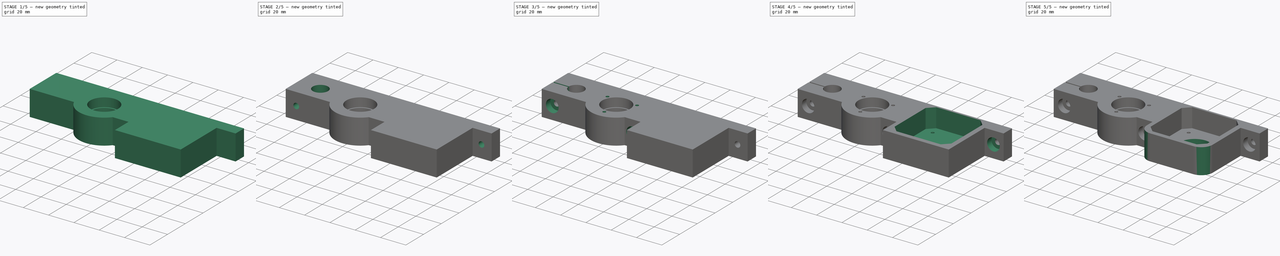
[diagram: build sequence overview — one tinted view per stage of 5, left to right]
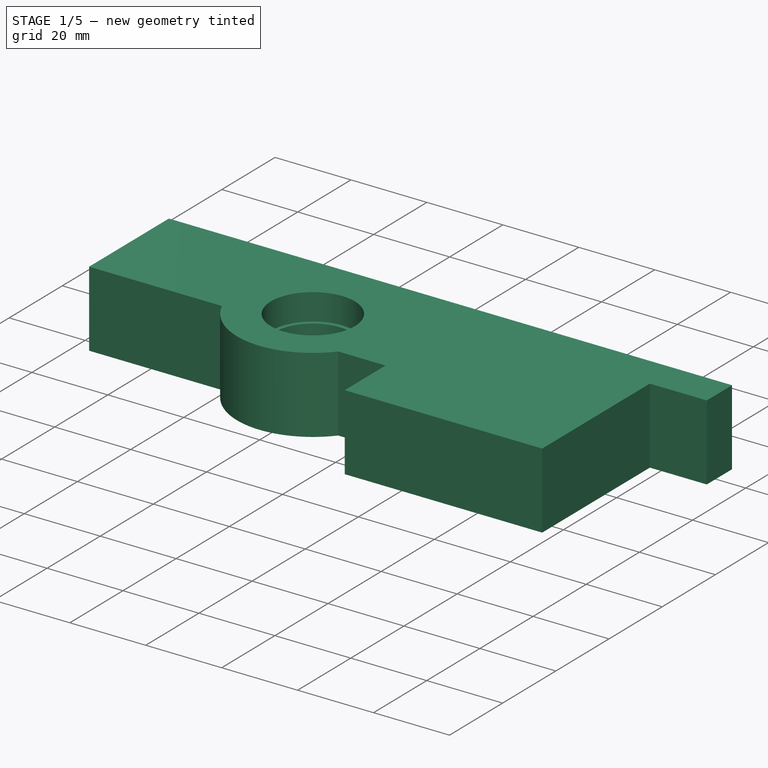
[diagram: stage 1 of 5 — iso view after this stage's code; geometry added in this stage tinted green]
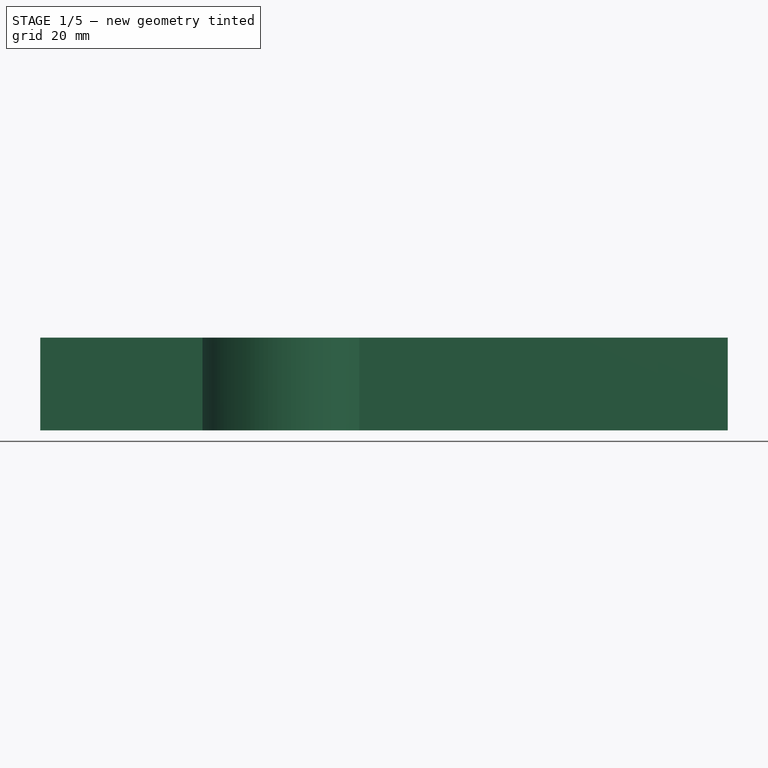
[diagram: stage 1 of 5 — front view after this stage's code; geometry added in this stage tinted green]
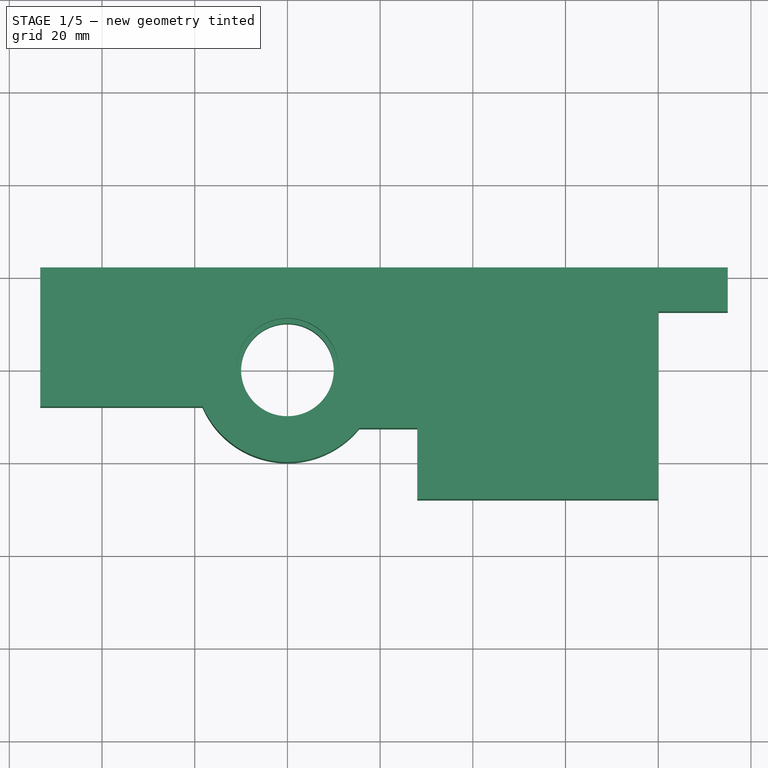
[diagram: stage 1 of 5 — top view after this stage's code; geometry added in this stage tinted green]
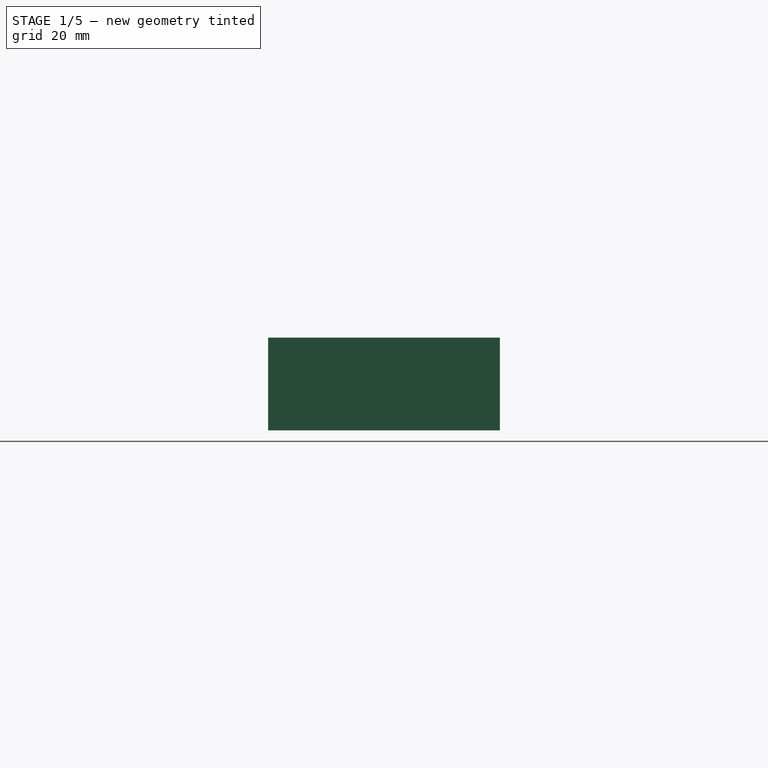
[diagram: stage 1 of 5 — right view after this stage's code; geometry added in this stage tinted green]
FCSTD DOCUMENT  (FreeCAD 0.16R4945 (Git))
Label: Z-leadscrew-back-bearing-block
License: CreativeCommons Attribution-ShareAlike
LicenseURL: http://creativecommons.org/licenses/by-sa/4.0/
objects: Sketcher::SketchObject×15, PartDesign::Pocket×14, PartDesign::Pad×1, PartDesign::Fillet×1
note: 46 computed .brp shape members not serialized (recipe doc carries the construction recipe); baked Part::Feature solids carry a one-line shape summary decoded from their .brp

FEATURE [Sketcher::SketchObject] Sketch
  sketch-geometry (10):
    g0: LineSegment StartX=-53.3303 StartY=22 StartZ=0 EndX=95 EndY=22 EndZ=0
    g1: LineSegment StartX=28 StartY=-28 StartZ=0 EndX=80 EndY=-28 EndZ=0
    g2: LineSegment StartX=95 StartY=12.5 StartZ=0 EndX=95 EndY=22 EndZ=0
    g3: ArcOfCircle CenterX=0 CenterY=0 CenterZ=0 NormalX=0 NormalY=0 NormalZ=1 Radius=20 StartAngle=3.55311 EndAngle=5.5991
    g4: LineSegment StartX=-18.3303 StartY=-8 StartZ=0 EndX=-53.3303 EndY=-8 EndZ=0
    g5: LineSegment StartX=-53.3303 StartY=-8 StartZ=0 EndX=-53.3303 EndY=22 EndZ=0
    g6: LineSegment StartX=28 StartY=-12.6392 StartZ=0 EndX=15.5 EndY=-12.6392 EndZ=0
    g7: LineSegment StartX=28 StartY=-28 StartZ=0 EndX=28 EndY=-12.6392 EndZ=0
    g8: LineSegment StartX=80 StartY=-28 StartZ=0 EndX=80 EndY=12.5 EndZ=0
    g9: LineSegment StartX=95 StartY=12.5 StartZ=0 EndX=80 EndY=12.5 EndZ=0
  constraints (31):
    c: Coincident(g0,g2)
    c: Coincident(g3,g-1)
    c: Horizontal(g4)
    c: Coincident(g4,g5)
    c: Vertical(g5)
    c: Coincident(g0,g5)
    c: DistanceY(g-1,g0) = 22
    c: Radius(g3) = 20
    c: Vertical(g2)
    c: Horizontal(g1)
    c: Coincident(g6,g3)
    c: Horizontal(g6)
    c: PointOnObject(g7,g1)
    c: PointOnObject(g7,g6)
    c: Vertical(g7)
    c: Coincident(g7,g1)
    c: Coincident(g6,g7)
    c: DistanceX(g-1,g3) = 15.5
    c: DistanceX(g-1,g0) = 95
    c: DistanceX(g4,g4) = 35
    c: Distance(g5) = 30
    c: Coincident(g3,g4)
    c: DistanceY(g1,g0) = 50
    c: Coincident(g8,g1)
    c: Vertical(g8)
    c: Horizontal(g0)
    c: Horizontal(g9)
    c: Coincident(g8,g9)
    c: Coincident(g2,g9)
    c: Distance(g1) = 52
    c: DistanceY(g2,g0) = 9.5
FEATURE [PartDesign::Pad] Pad
  Length = 20
  Length2 = 100
  Sketch = -> Sketch
  Type = 0
FEATURE [Sketcher::SketchObject] Sketch006
  Placement = pos=(0,0,0) rot=(1,0,0;3.14159rad)
  Support = -> Pad [Face11]
  sketch-geometry (1):
    g0: Circle CenterX=0 CenterY=0 CenterZ=0 NormalX=0 NormalY=0 NormalZ=1 Radius=10
  constraints (2):
    c: Coincident(g0,g-1)
    c: Radius(g0) = 10
FEATURE [PartDesign::Pocket] Pocket
  Length = 5
  Sketch = -> Sketch006
  Type = 1
FEATURE [Sketcher::SketchObject] Sketch005
  Placement = pos=(0,0,20) rot=(0,0,1;0rad)
  Support = -> Pocket [Face5]
  sketch-geometry (1):
    g0: Circle CenterX=0 CenterY=0 CenterZ=0 NormalX=0 NormalY=0 NormalZ=1 Radius=11.05
  constraints (2):
    c: Coincident(g0,g-1)
    c: Radius(g0) = 11.05
FEATURE [PartDesign::Pocket] Pocket001
  Length = 7
  Sketch = -> Sketch005
  Type = 0
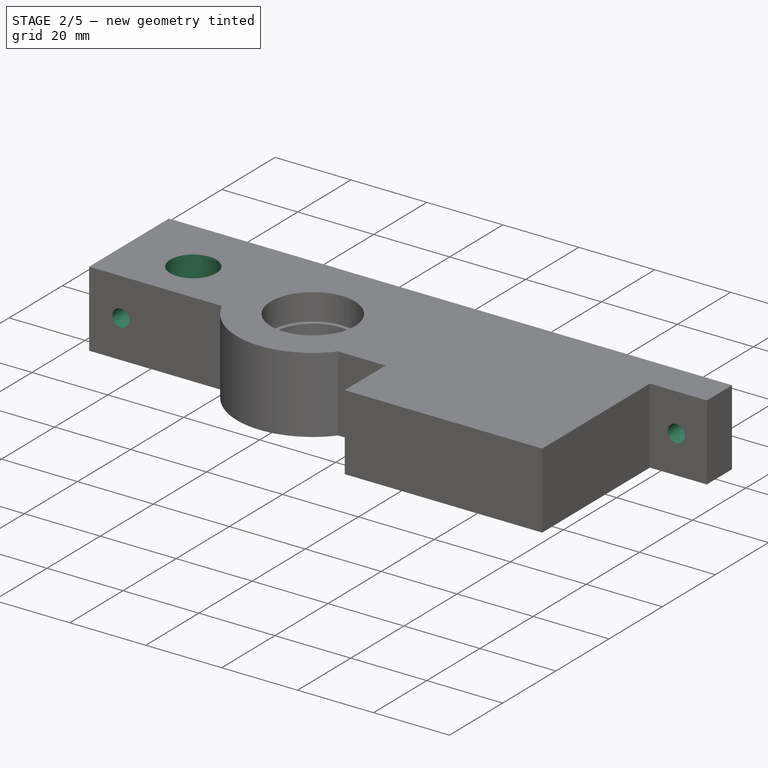
[diagram: stage 2 of 5 — iso view after this stage's code; geometry added in this stage tinted green]
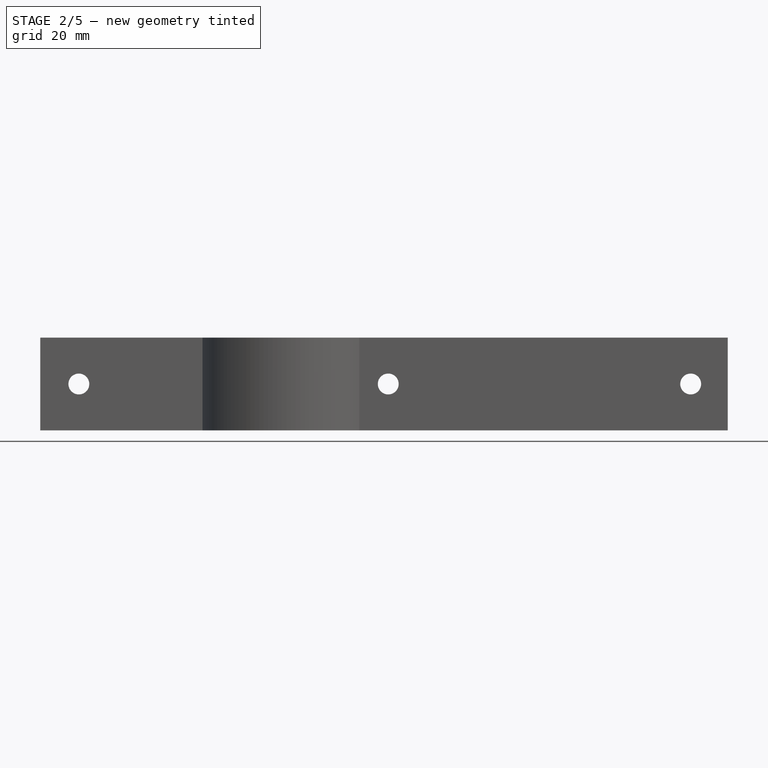
[diagram: stage 2 of 5 — front view after this stage's code; geometry added in this stage tinted green]
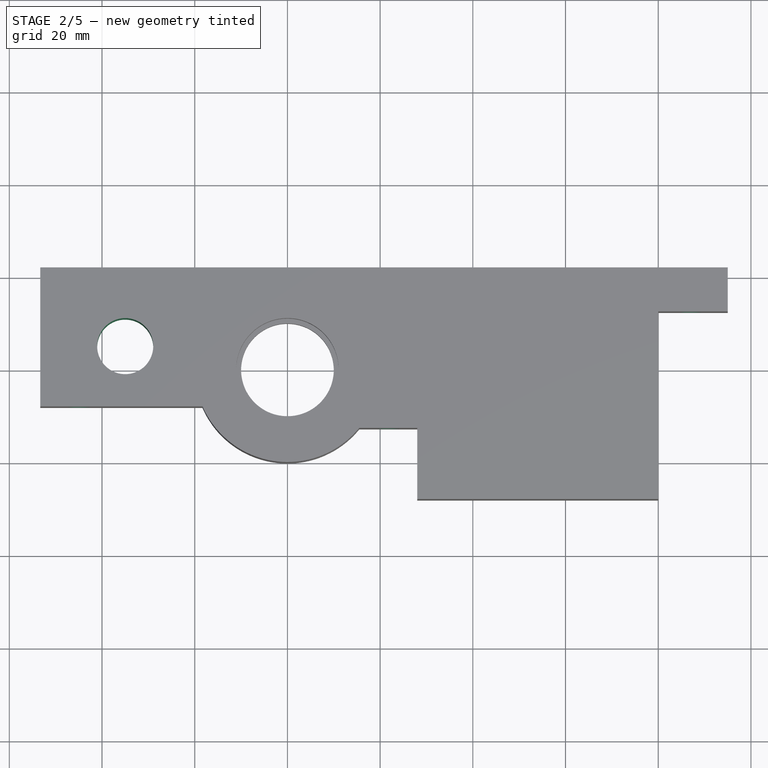
[diagram: stage 2 of 5 — top view after this stage's code; geometry added in this stage tinted green]
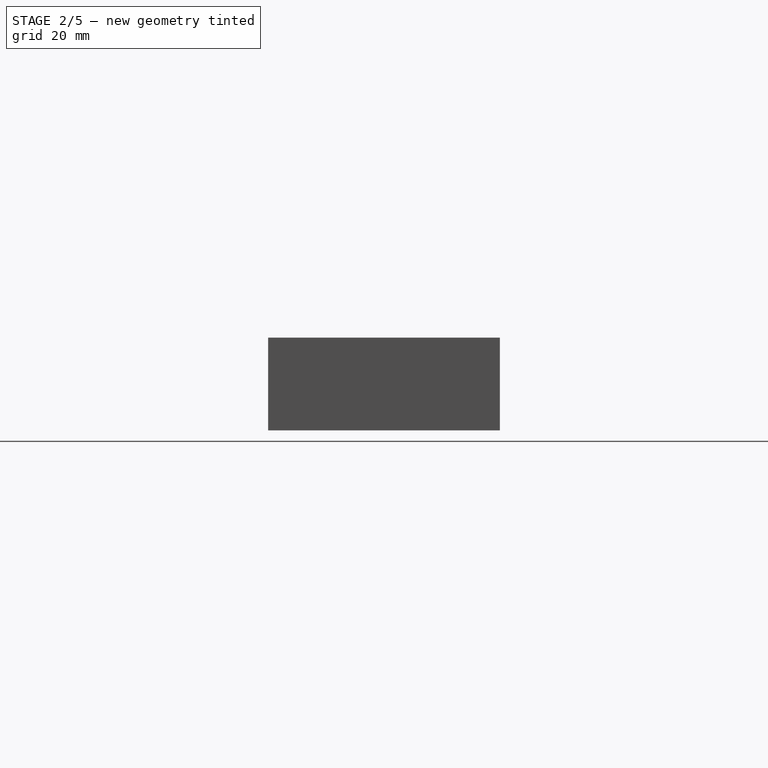
[diagram: stage 2 of 5 — right view after this stage's code; geometry added in this stage tinted green]
FEATURE [Sketcher::SketchObject] Sketch002
  Placement = pos=(0,-28,0) rot=(1,0,0;1.5708rad)
  Support = -> Pocket001 [Face10]
  sketch-geometry (3):
    g0: Circle CenterX=21.75 CenterY=10 CenterZ=0 NormalX=0 NormalY=0 NormalZ=1 Radius=2.25
    g1: Circle CenterX=-45 CenterY=10 CenterZ=0 NormalX=0 NormalY=0 NormalZ=1 Radius=2.25
    g2: Circle CenterX=87 CenterY=10 CenterZ=0 NormalX=0 NormalY=0 NormalZ=1 Radius=2.25
  constraints (8):
    c: DistanceY(g-1,g0) = 10
    c: Radius(g0) = 2.25
    c: DistanceX(g-1,g0) = 21.75
    c: Equal(g0,g1)
    c: Equal(g1,g2)
    c: DistanceY(g-1,g2) = 10
    c: DistanceX(g-1,g1) = -45
    c: DistanceX(g-1,g2) = 87
FEATURE [PartDesign::Pocket] Pocket002
  Length = 5
  Sketch = -> Sketch002
  Type = 1
FEATURE [Sketcher::SketchObject] Sketch009
  Placement = pos=(0,0,0) rot=(1,0,0;3.14159rad)
  Support = -> Pocket002 [Face3]
  sketch-geometry (1):
    g0: Circle CenterX=0 CenterY=0 CenterZ=0 NormalX=0 NormalY=0 NormalZ=1 Radius=11.05
  constraints (2):
    c: Coincident(g0,g-1)
    c: Radius(g0) = 11.05
FEATURE [PartDesign::Pocket] Pocket006
  Length = 7
  Sketch = -> Sketch009
  Type = 0
FEATURE [Sketcher::SketchObject] Sketch010
  ExternalGeometry = -> [Pocket006]
  Placement = pos=(0,0,20) rot=(0,0,1;0rad)
  Support = -> Pocket006 [Face4]
  sketch-geometry (1):
    g0: Circle CenterX=-35 CenterY=5 CenterZ=0 NormalX=0 NormalY=0 NormalZ=1 Radius=6.05
  constraints (3):
    c: Radius(g0) = 6.05
    c: DistanceY(g-1,g0) = 5
    c: DistanceX(g-1,g0) = -35
FEATURE [PartDesign::Pocket] Pocket007
  Length = 5
  Sketch = -> Sketch010
  Type = 1
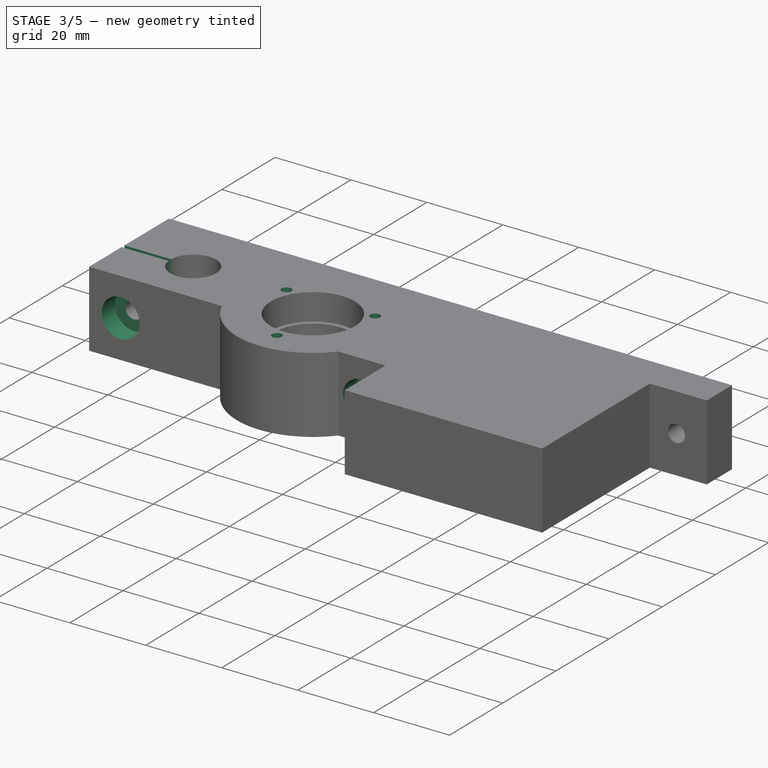
[diagram: stage 3 of 5 — iso view after this stage's code; geometry added in this stage tinted green]
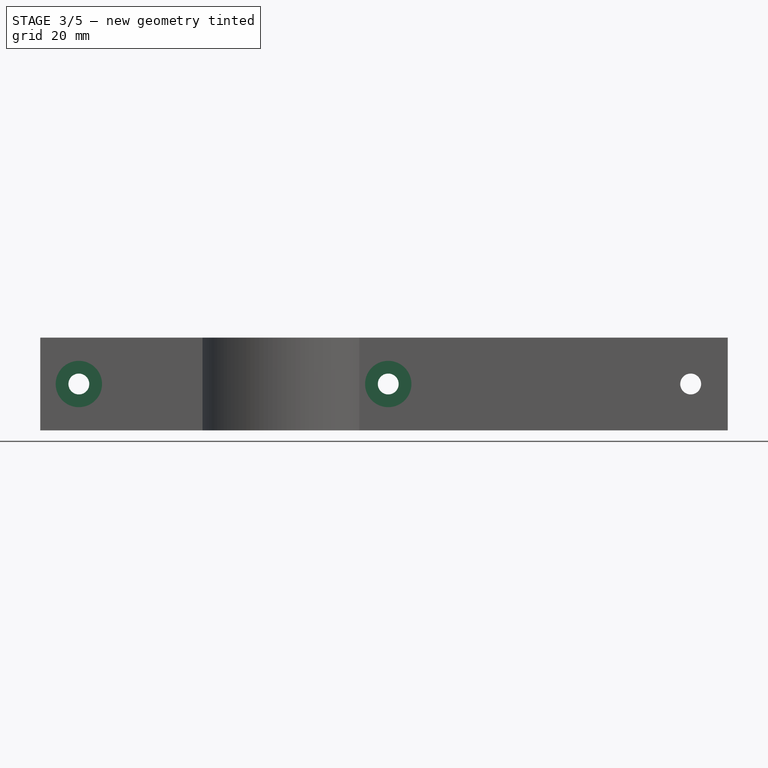
[diagram: stage 3 of 5 — front view after this stage's code; geometry added in this stage tinted green]
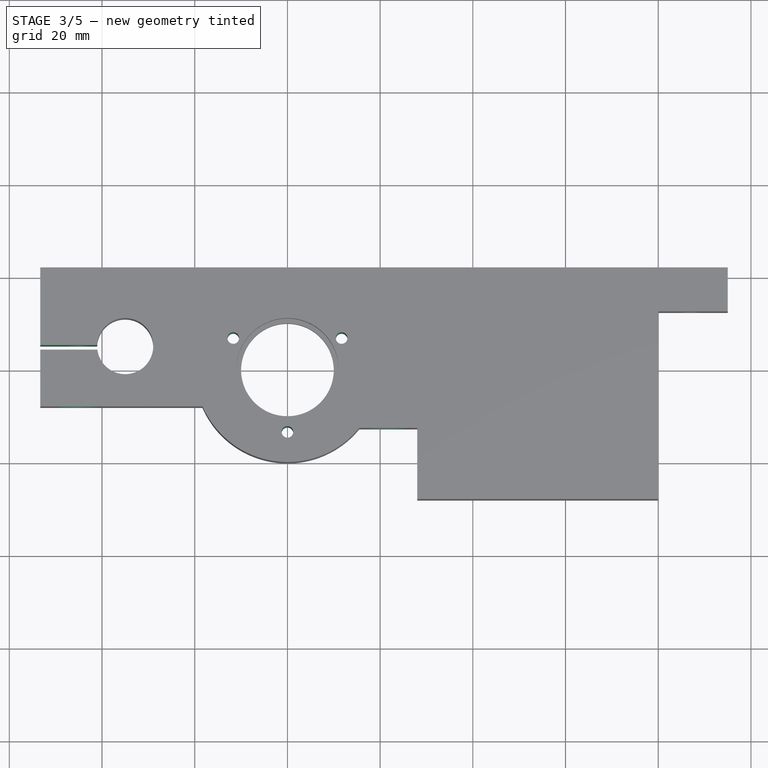
[diagram: stage 3 of 5 — top view after this stage's code; geometry added in this stage tinted green]
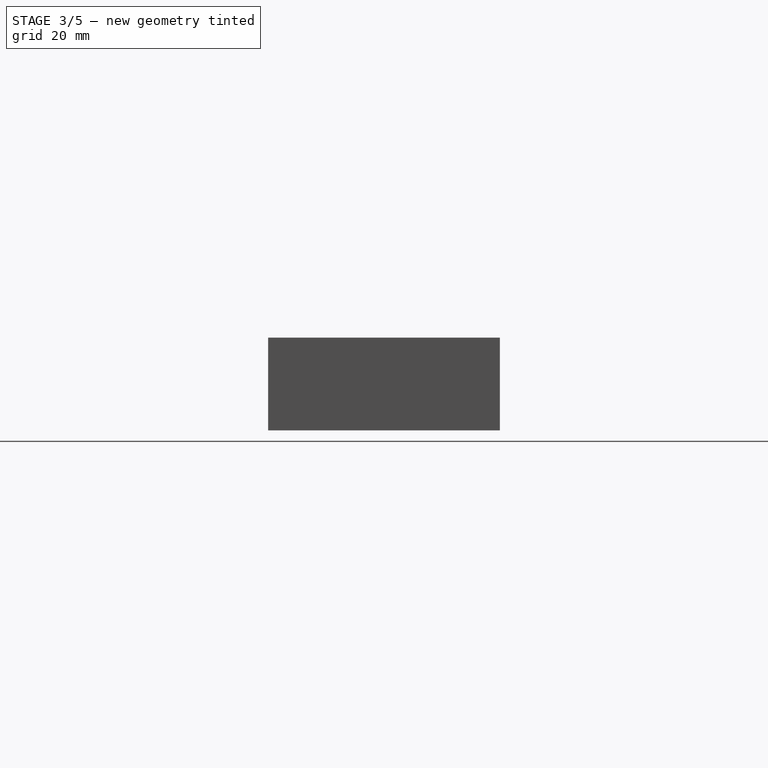
[diagram: stage 3 of 5 — right view after this stage's code; geometry added in this stage tinted green]
FEATURE [Sketcher::SketchObject] Sketch011
  ExternalGeometry = -> [Pocket007]
  Placement = pos=(0,0,20) rot=(0,0,1;0rad)
  Support = -> Pocket007 [Face4]
  sketch-geometry (4):
    g0: LineSegment StartX=-55 StartY=5.25 StartZ=0 EndX=-30 EndY=5.25 EndZ=0
    g1: LineSegment StartX=-30 StartY=5.25 StartZ=0 EndX=-30 EndY=4.25 EndZ=0
    g2: LineSegment StartX=-30 StartY=4.25 StartZ=0 EndX=-55 EndY=4.25 EndZ=0
    g3: LineSegment StartX=-55 StartY=4.25 StartZ=0 EndX=-55 EndY=5.25 EndZ=0
  constraints (12):
    c: Coincident(g0,g1)
    c: Coincident(g1,g2)
    c: Coincident(g2,g3)
    c: Coincident(g3,g0)
    c: Horizontal(g0)
    c: Horizontal(g2)
    c: Vertical(g1)
    c: Vertical(g3)
    c: Distance(g2) = 25
    c: Distance(g3) = 1
    c: DistanceY(g-1,g1) = 4.25
    c: DistanceX(g-1,g1) = -30
FEATURE [PartDesign::Pocket] Pocket008
  Length = 5
  Sketch = -> Sketch011
  Type = 1
FEATURE [Sketcher::SketchObject] Sketch012
  Placement = pos=(0,0,20) rot=(0,0,1;0rad)
  Support = -> Pocket008 [Face4]
  sketch-geometry (7):
    g0: Circle [constr] CenterX=0 CenterY=0 CenterZ=0 NormalX=0 NormalY=0 NormalZ=1 Radius=13.5
    g1: Circle CenterX=11.6913 CenterY=6.75 CenterZ=0 NormalX=0 NormalY=0 NormalZ=1 Radius=1.25
    g2: Circle CenterX=-11.6913 CenterY=6.75 CenterZ=0 NormalX=0 NormalY=0 NormalZ=1 Radius=1.25
    g3: Circle CenterX=0 CenterY=-13.5 CenterZ=0 NormalX=0 NormalY=0 NormalZ=1 Radius=1.25
    g4: LineSegment [constr] StartX=0 StartY=0 StartZ=0 EndX=11.6913 EndY=6.75 EndZ=0
    g5: LineSegment [constr] StartX=0 StartY=0 StartZ=0 EndX=0 EndY=-13.5 EndZ=0
    g6: LineSegment [constr] StartX=0 StartY=0 StartZ=0 EndX=-11.6913 EndY=6.75 EndZ=0
  constraints (20):
    c: Coincident(g0,g-1)
    c: PointOnObject(g1,g0)
    c: PointOnObject(g2,g0)
    c: PointOnObject(g3,g0)
    c: Radius(g2) = 1.25
    c: Equal(g2,g1)
    c: Equal(g1,g3)
    c: Coincident(g4,g-1)
    c: Coincident(g5,g-1)
    c: PointOnObject(g5,g0)
    c: PointOnObject(g4,g0)
    c: Coincident(g6,g-1)
    c: PointOnObject(g6,g0)
    c: Angle(g5,g4) = 2.0944
    c: Angle(g6,g5) = 2.0944
    c: Coincident(g3,g5)
    c: Coincident(g6,g2)
    c: Coincident(g1,g4)
    c: Radius(g0) = 13.5
    c: PointOnObject(g3,g-2)
FEATURE [PartDesign::Pocket] Pocket009
  Length = 8
  Sketch = -> Sketch012
  Type = 1
FEATURE [Sketcher::SketchObject] Sketch008
  ExternalGeometry = -> [Pocket009]
  Placement = pos=(0,-8,0) rot=(1,0,0;1.5708rad)
  Support = -> Pocket009 [Face1]
  sketch-geometry (1):
    g0: Circle CenterX=-45 CenterY=10 CenterZ=0 NormalX=0 NormalY=0 NormalZ=1 Radius=5
  constraints (2):
    c: Radius(g0) = 5
    c: Coincident(g0,g-3)
FEATURE [PartDesign::Pocket] Pocket010
  Length = 5
  Sketch = -> Sketch008
  Type = 0
FEATURE [Sketcher::SketchObject] Sketch013
  ExternalGeometry = -> [Pocket010]
  Placement = pos=(0,-12.6392,0) rot=(1,0,0;1.5708rad)
  Support = -> Pocket010 [Face7]
  sketch-geometry (1):
    g0: Circle CenterX=21.75 CenterY=10 CenterZ=0 NormalX=0 NormalY=0 NormalZ=1 Radius=5
  constraints (2):
    c: Radius(g0) = 5
    c: Coincident(g0,g-4)
FEATURE [PartDesign::Pocket] Pocket011
  Length = 5
  Sketch = -> Sketch013
  Type = 0
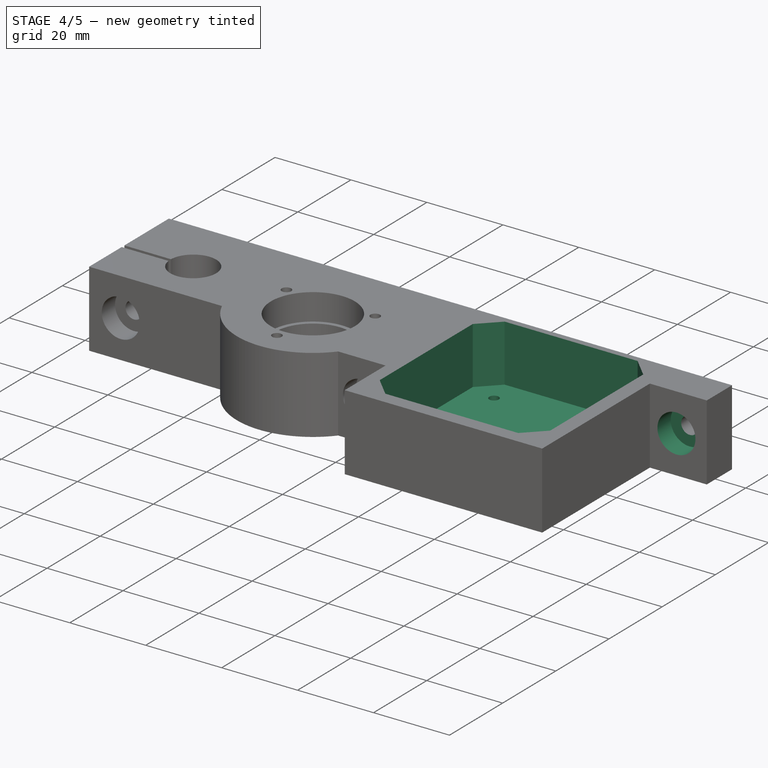
[diagram: stage 4 of 5 — iso view after this stage's code; geometry added in this stage tinted green]
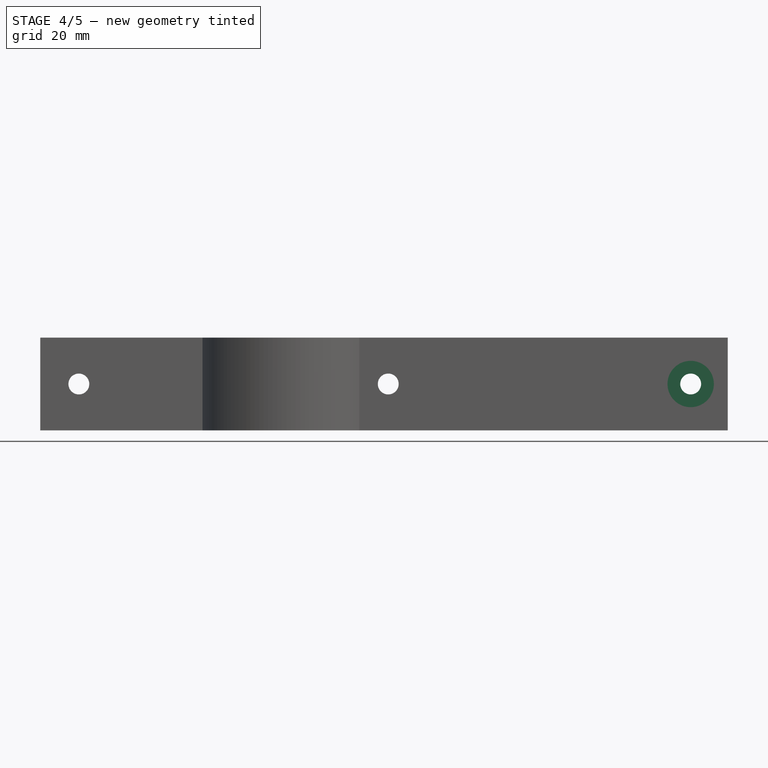
[diagram: stage 4 of 5 — front view after this stage's code; geometry added in this stage tinted green]
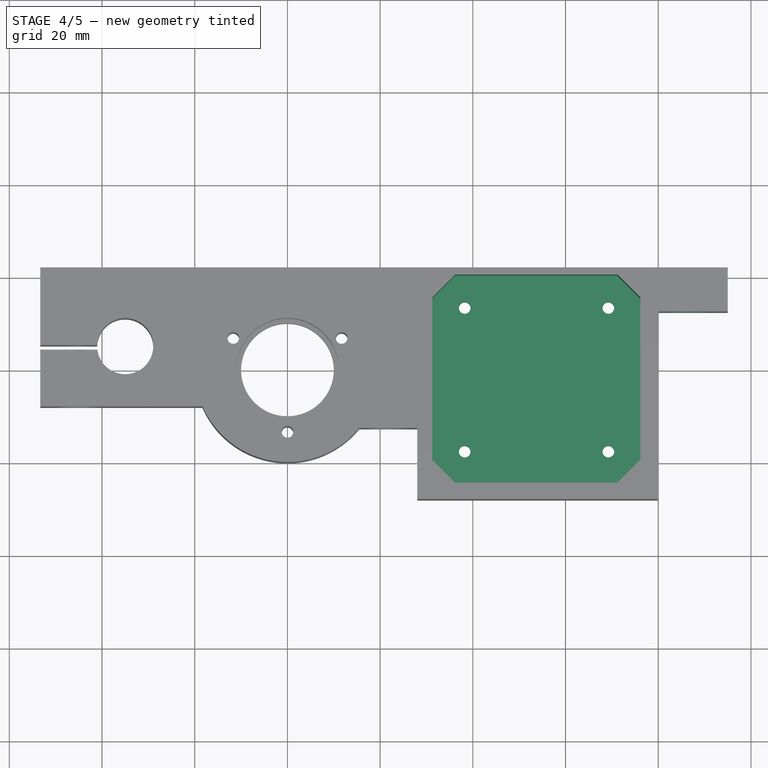
[diagram: stage 4 of 5 — top view after this stage's code; geometry added in this stage tinted green]
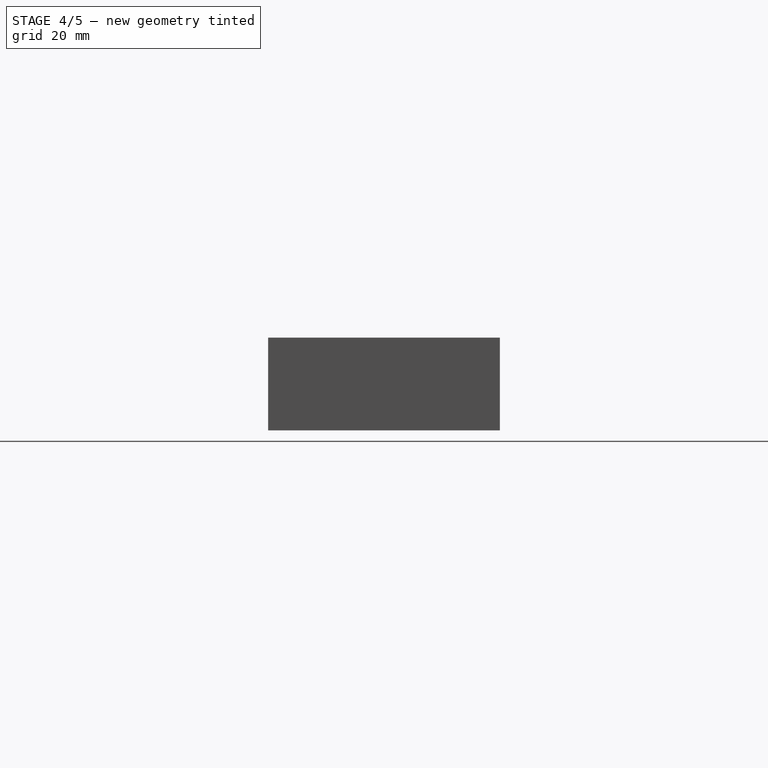
[diagram: stage 4 of 5 — right view after this stage's code; geometry added in this stage tinted green]
FEATURE [Sketcher::SketchObject] Sketch014
  ExternalGeometry = -> [Pocket011]
  Placement = pos=(0,12.5,0) rot=(1,0,0;1.5708rad)
  Support = -> Pocket011 [Face15]
  sketch-geometry (1):
    g0: Circle CenterX=87 CenterY=10 CenterZ=0 NormalX=0 NormalY=0 NormalZ=1 Radius=5
  constraints (2):
    c: Radius(g0) = 5
    c: Coincident(g-4,g0)
FEATURE [PartDesign::Pocket] Pocket012
  Length = 5
  Sketch = -> Sketch014
  Type = 0
FEATURE [Sketcher::SketchObject] Sketch015
  Placement = pos=(0,0,20) rot=(0,0,1;0rad)
  Support = -> Pocket012 [Face4]
  sketch-geometry (8):
    g0: LineSegment StartX=31.25 StartY=-19.5 StartZ=0 EndX=31.25 EndY=15.5 EndZ=0
    g1: LineSegment StartX=31.25 StartY=15.5 StartZ=0 EndX=36.1997 EndY=20.4497 EndZ=0
    g2: LineSegment StartX=36.1997 StartY=20.4497 StartZ=0 EndX=71.1997 EndY=20.4497 EndZ=0
    g3: LineSegment StartX=71.1997 StartY=20.4497 StartZ=0 EndX=76.1495 EndY=15.5 EndZ=0
    g4: LineSegment StartX=76.1495 StartY=15.5 StartZ=0 EndX=76.1495 EndY=-19.5 EndZ=0
    g5: LineSegment StartX=76.1495 StartY=-19.5 StartZ=0 EndX=71.1997 EndY=-24.4497 EndZ=0
    g6: LineSegment StartX=71.1997 StartY=-24.4497 StartZ=0 EndX=36.1997 EndY=-24.4497 EndZ=0
    g7: LineSegment StartX=36.1997 StartY=-24.4497 StartZ=0 EndX=31.25 EndY=-19.5 EndZ=0
  constraints (24):
    c: Vertical(g0)
    c: Coincident(g0,g1)
    c: Coincident(g1,g2)
    c: Horizontal(g2)
    c: Coincident(g2,g3)
    c: Coincident(g3,g4)
    c: Vertical(g4)
    c: Coincident(g4,g5)
    c: Coincident(g5,g6)
    c: Horizontal(g6)
    c: Coincident(g6,g7)
    c: Coincident(g0,g7)
    c: Angle(g6,g7) = 2.35619
    c: Angle(g5,g6) = 2.35619
    c: Angle(g3,g4) = 2.35619
    c: Angle(g1,g2) = 2.35619
    c: Distance(g6) = 35
    c: Distance(g4) = 35
    c: Distance(g2) = 35
    c: Distance(g1) = 7
    c: Distance(g3) = 7
    c: Distance(g5) = 7
    c: DistanceY(g-1,g0) = 15.5
    c: DistanceX(g-1,g0) = 31.25
FEATURE [PartDesign::Pocket] Pocket013
  Length = 15
  Sketch = -> Sketch015
  Type = 0
FEATURE [Sketcher::SketchObject] Sketch016
  Placement = pos=(0,0,0) rot=(1,0,0;3.14159rad)
  Support = -> Pocket013 [Face3]
  sketch-geometry (4):
    g0: Circle CenterX=38.25 CenterY=17.5 CenterZ=0 NormalX=0 NormalY=0 NormalZ=1 Radius=1.25
    g1: Circle CenterX=69.25 CenterY=17.5 CenterZ=0 NormalX=0 NormalY=0 NormalZ=1 Radius=1.25
    g2: Circle CenterX=38.25 CenterY=-13.5 CenterZ=0 NormalX=0 NormalY=0 NormalZ=1 Radius=1.25
    g3: Circle CenterX=69.25 CenterY=-13.5 CenterZ=0 NormalX=0 NormalY=0 NormalZ=1 Radius=1.25
  constraints (12):
    c: Radius(g0) = 1.25
    c: Equal(g0,g1)
    c: Equal(g1,g2)
    c: Equal(g2,g3)
    c: DistanceY(g0,g2) = -31
    c: DistanceX(g0,g1) = 31
    c: DistanceX(g-1,g0) = 38.25
    c: DistanceY(g-1,g0) = 17.5
    c: DistanceY(g-1,g1) = 17.5
    c: DistanceY(g1,g3) = -31
    c: DistanceX(g2,g3) = 31
    c: DistanceX(g2,g0) = 0
FEATURE [PartDesign::Pocket] Pocket014
  Length = 5
  Sketch = -> Sketch016
  Type = 1
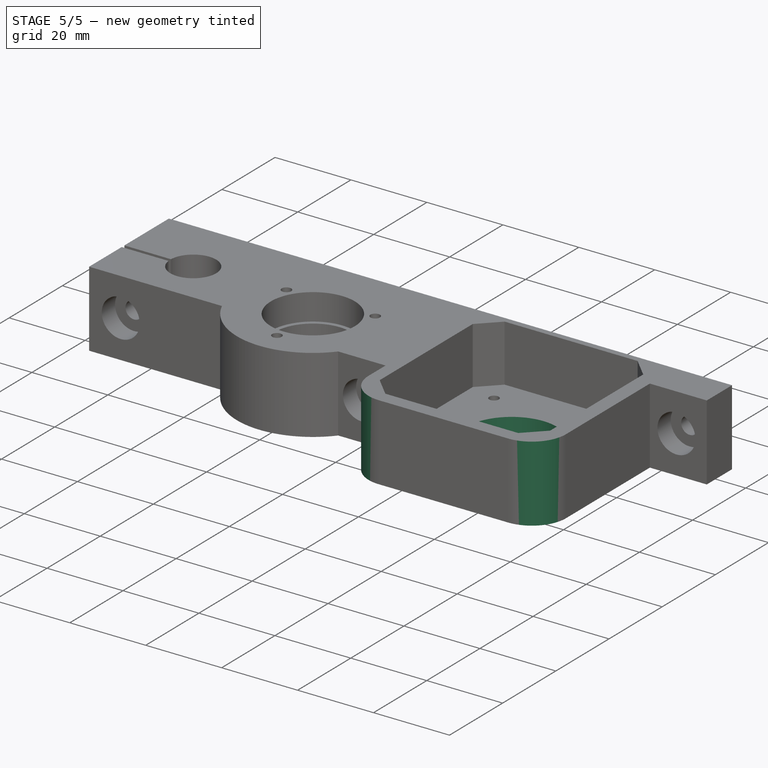
[diagram: stage 5 of 5 — iso view after this stage's code; geometry added in this stage tinted green]
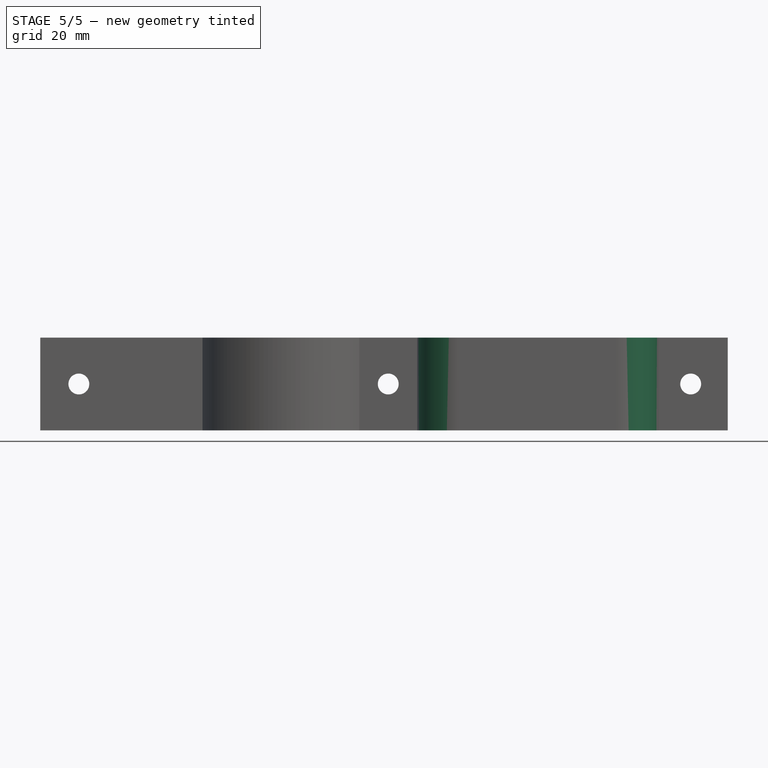
[diagram: stage 5 of 5 — front view after this stage's code; geometry added in this stage tinted green]
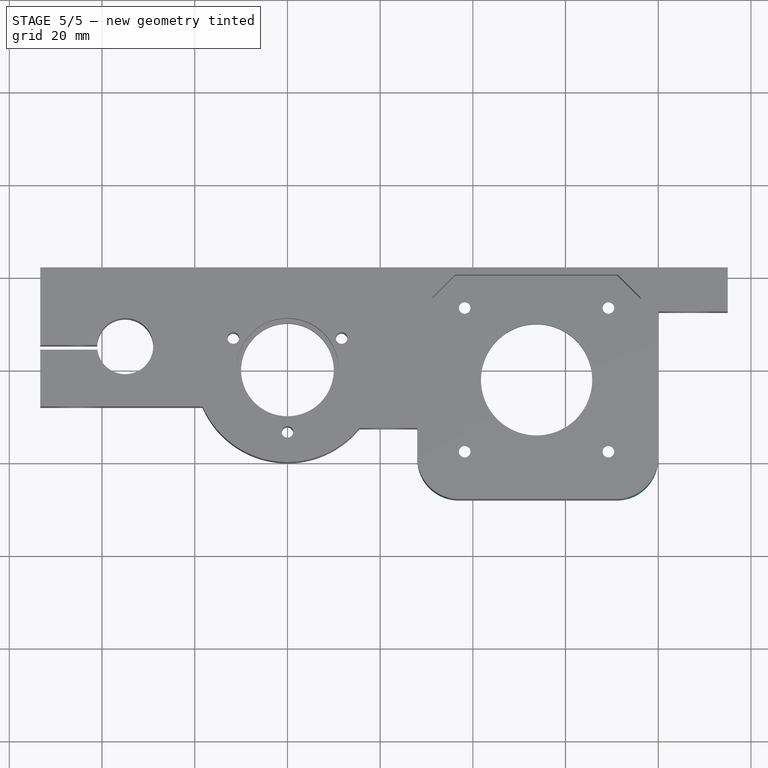
[diagram: stage 5 of 5 — top view after this stage's code; geometry added in this stage tinted green]
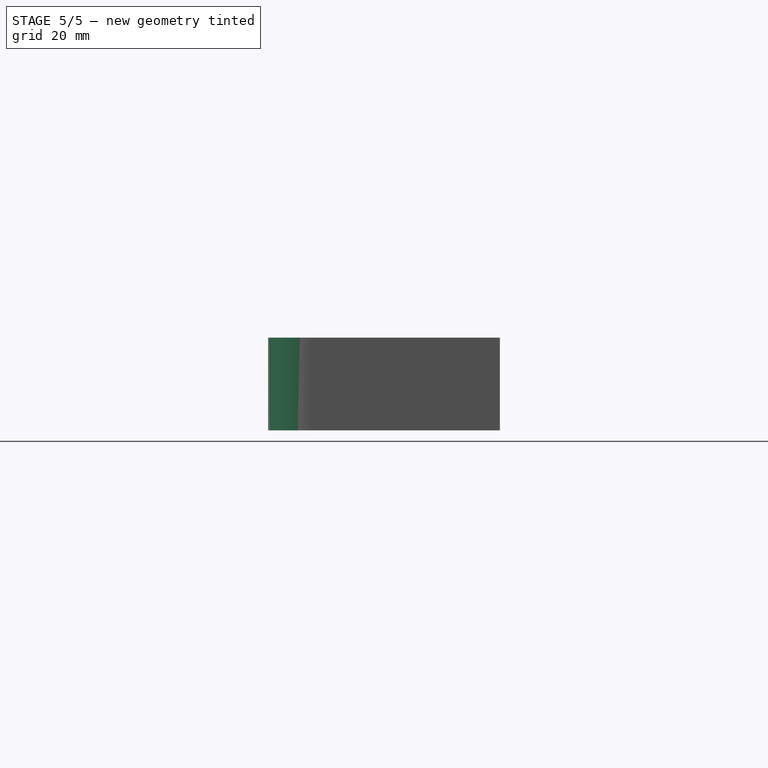
[diagram: stage 5 of 5 — right view after this stage's code; geometry added in this stage tinted green]
FEATURE [Sketcher::SketchObject] Sketch017
  ExternalGeometry = -> [Pocket014]
  Placement = pos=(0,0,0) rot=(1,0,0;3.14159rad)
  Support = -> Pocket014 [Face3]
  sketch-geometry (4):
    g0: Circle CenterX=38.25 CenterY=17.5 CenterZ=0 NormalX=0 NormalY=0 NormalZ=1 Radius=3
    g1: Circle CenterX=69.25 CenterY=17.5 CenterZ=0 NormalX=0 NormalY=0 NormalZ=1 Radius=3
    g2: Circle CenterX=38.25 CenterY=-13.5 CenterZ=0 NormalX=0 NormalY=0 NormalZ=1 Radius=3
    g3: Circle CenterX=69.25 CenterY=-13.5 CenterZ=0 NormalX=0 NormalY=0 NormalZ=1 Radius=3
  constraints (8):
    c: Coincident(g0,g-3)
    c: Coincident(g1,g-4)
    c: Coincident(g2,g-5)
    c: Coincident(g3,g-6)
    c: Equal(g0,g1)
    c: Equal(g1,g2)
    c: Equal(g2,g3)
    c: Radius(g0) = 3
FEATURE [PartDesign::Pocket] Pocket015
  Length = 3
  Sketch = -> Sketch017
  Type = 0
FEATURE [Sketcher::SketchObject] Sketch018
  ExternalGeometry = -> [Pocket015]
  Placement = pos=(0,0,0) rot=(1,0,0;3.14159rad)
  Support = -> Pocket015 [Face3]
  sketch-geometry (3):
    g0: Circle CenterX=53.75 CenterY=2 CenterZ=0 NormalX=0 NormalY=0 NormalZ=1 Radius=12
    g1: LineSegment [constr] StartX=53.75 StartY=14 StartZ=0 EndX=53.75 EndY=-10 EndZ=0
    g2: LineSegment [constr] StartX=41.75 StartY=2 StartZ=0 EndX=65.75 EndY=2 EndZ=0
  constraints (11):
    c: Radius(g0) = 12
    c: Vertical(g1)
    c: Horizontal(g2)
    c: Symmetric(g-3,g-5,g1)
    c: Symmetric(g-3,g-4,g2)
    c: PointOnObject(g0,g1)
    c: PointOnObject(g0,g2)
    c: PointOnObject(g2,g0)
    c: PointOnObject(g2,g0)
    c: PointOnObject(g1,g0)
    c: PointOnObject(g1,g0)
FEATURE [PartDesign::Pocket] Pocket016
  Length = 5
  Sketch = -> Sketch018
  Type = 0
FEATURE [PartDesign::Fillet] Fillet
  Base = -> Pocket016 [Edge63,Edge65]
  Radius = 9
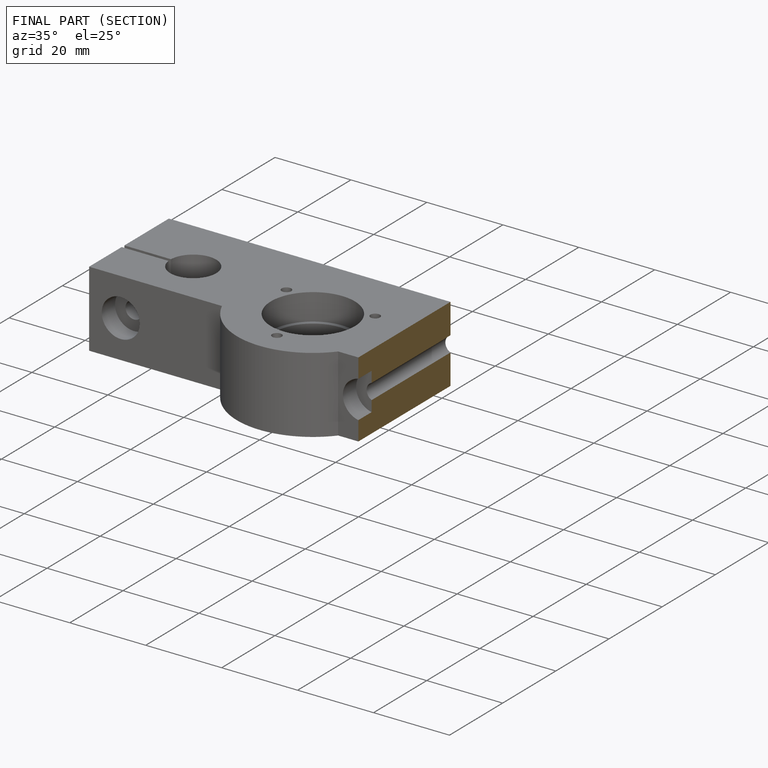
[diagram: finished part — half-section view (interior)]
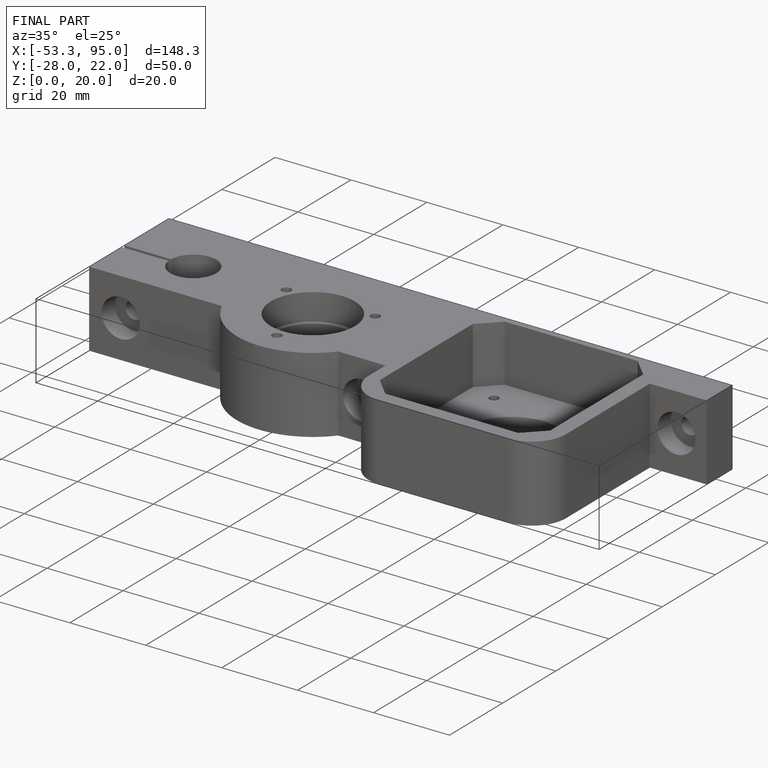
[diagram: finished part — iso view with bounding-box wireframe]
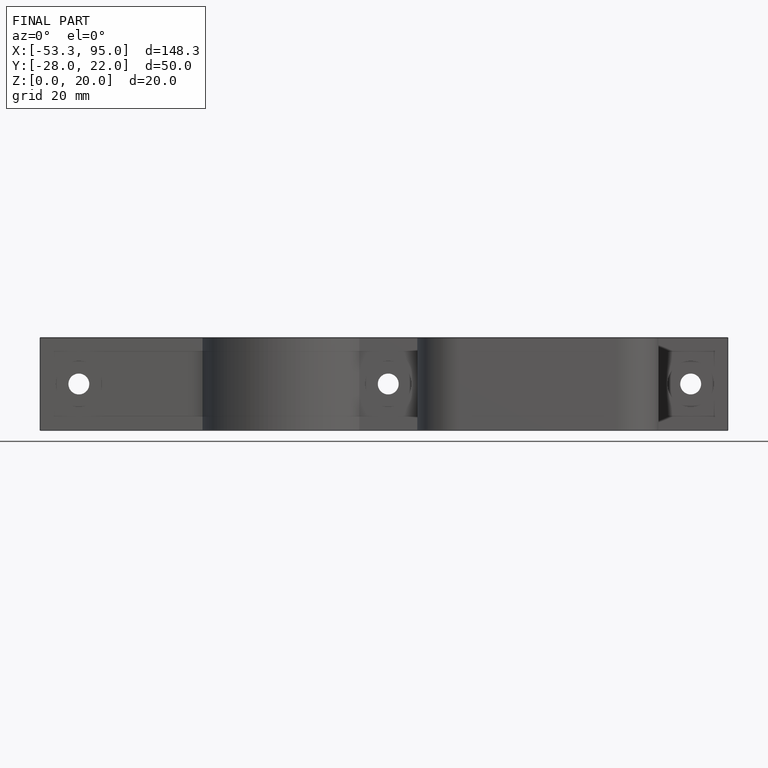
[diagram: finished part — front view with bounding-box wireframe]
